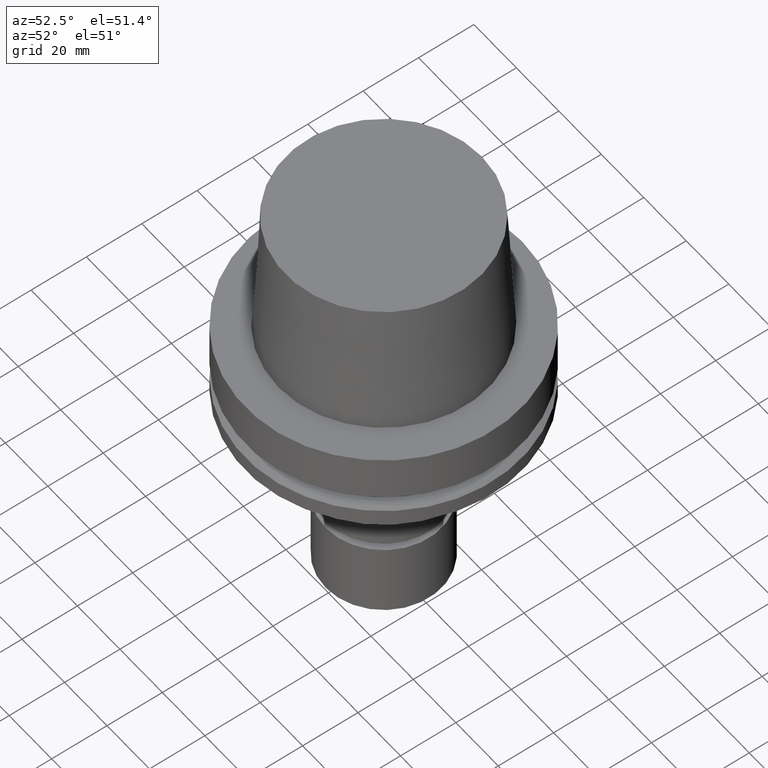
[diagram: clean part render]
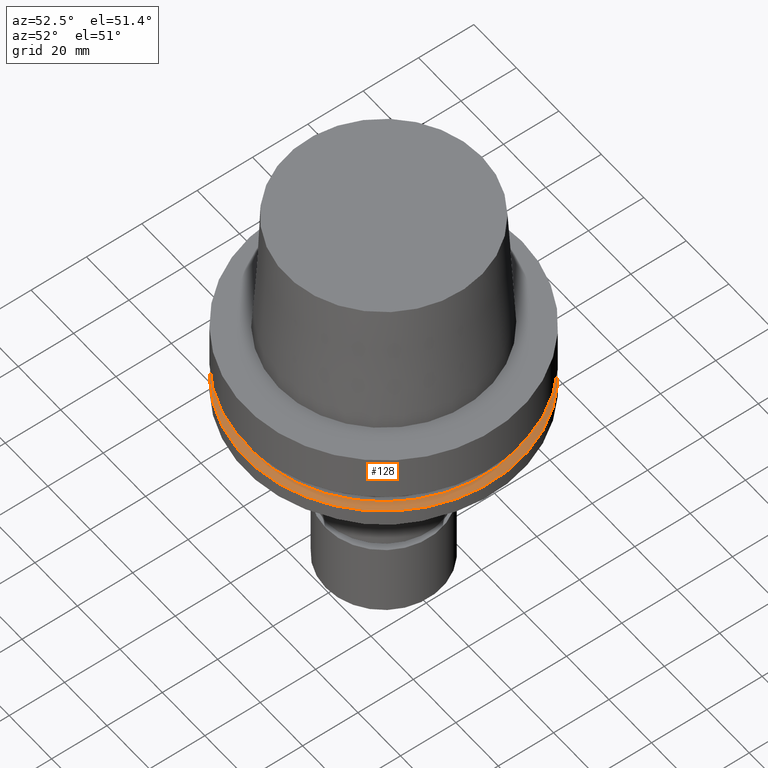
[diagram: same view with one face highlighted and labeled with its STEP entity id]
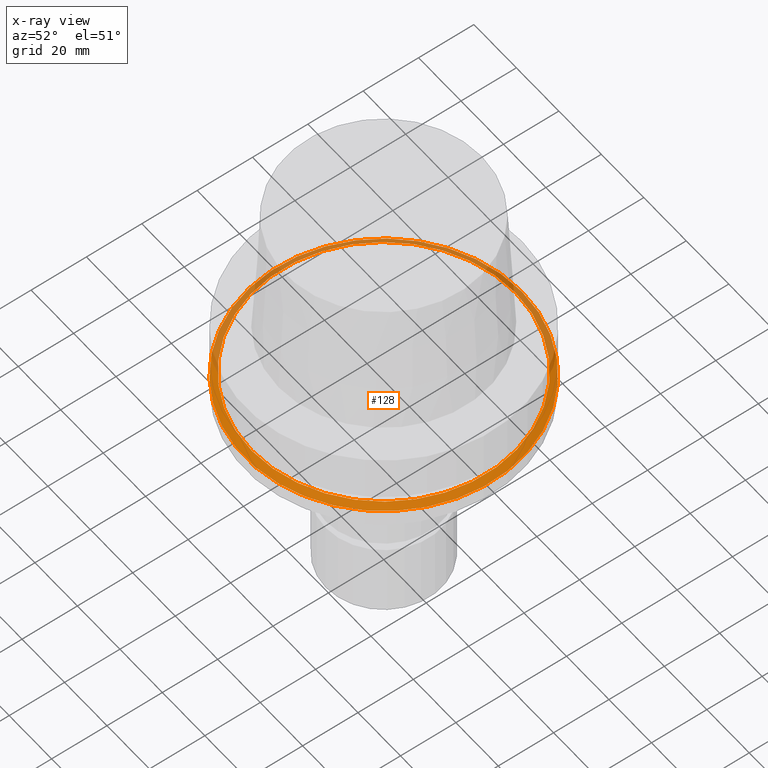
[diagram: x-ray of the same camera — body ghosted, the highlighted face saturated]
A machine part, auxiliary view. The second image highlights one B-rep face of the part: STEP entity #128.
The next image is the same camera in x-ray: the body ghosted, the highlighted face saturated — about 34% of this face is hidden behind the body in this view.
In plain terms, the highlighted conical surface has half-angle 60 deg.
Its self-contained STEP definition (entity closure, byte-faithful):
#111=EDGE_CURVE('Unnamed[1]',#269,#269,#270,.T.);
#128=ADVANCED_FACE('Unnamed[1]',(#296,#297),#298,.T.);
#189=EDGE_CURVE('Unnamed[1]',#390,#390,#391,.T.);
#269=VERTEX_POINT('',#479);
#270=CIRCLE('',#480,47.62259526);
#296=FACE_BOUND('',#512,.T.);
#297=FACE_BOUND('',#513,.T.);
#298=CONICAL_SURFACE('',#514,48.81129763,1.04719755328238);
#390=VERTEX_POINT('',#630);
#391=CIRCLE('',#631,50.0);
#479=CARTESIAN_POINT('',(1.33945743656742E-015,47.62259526,-21.875));
#480=AXIS2_PLACEMENT_3D('',#707,#708,#709);
#512=EDGE_LOOP('',(#738));
#513=EDGE_LOOP('',(#739));
#514=AXIS2_PLACEMENT_3D('',#740,#741,#742);
#630=CARTESIAN_POINT('',(1.42350465615161E-015,50.0,-23.24759526));
#631=AXIS2_PLACEMENT_3D('',#841,#842,#843);
#707=CARTESIAN_POINT('',(1.33945743656742E-015,2.67891487313484E-015,-21.875));
#708=DIRECTION('',(6.12323399573676E-017,1.22464679914735E-016,-1.0));
#709=DIRECTION('',(-1.23259516440783E-032,1.0,1.22464679914735E-016));
#738=ORIENTED_EDGE('',*,*,#189,.F.);
#739=ORIENTED_EDGE('',*,*,#111,.T.);
#740=CARTESIAN_POINT('',(1.38148104635951E-015,2.76296209271903E-015,-22.56129763));
#741=DIRECTION('',(6.12323399573677E-017,1.22464679914735E-016,-1.0));
#742=DIRECTION('',(-1.23259516440783E-032,1.0,1.22464679914735E-016));
#841=CARTESIAN_POINT('',(1.42350465615161E-015,2.84700931230322E-015,-23.24759526));
#842=DIRECTION('',(6.12323399573677E-017,1.22464679914735E-016,-1.0));
#843=DIRECTION('',(-1.23259516440783E-032,1.0,1.22464679914735E-016));